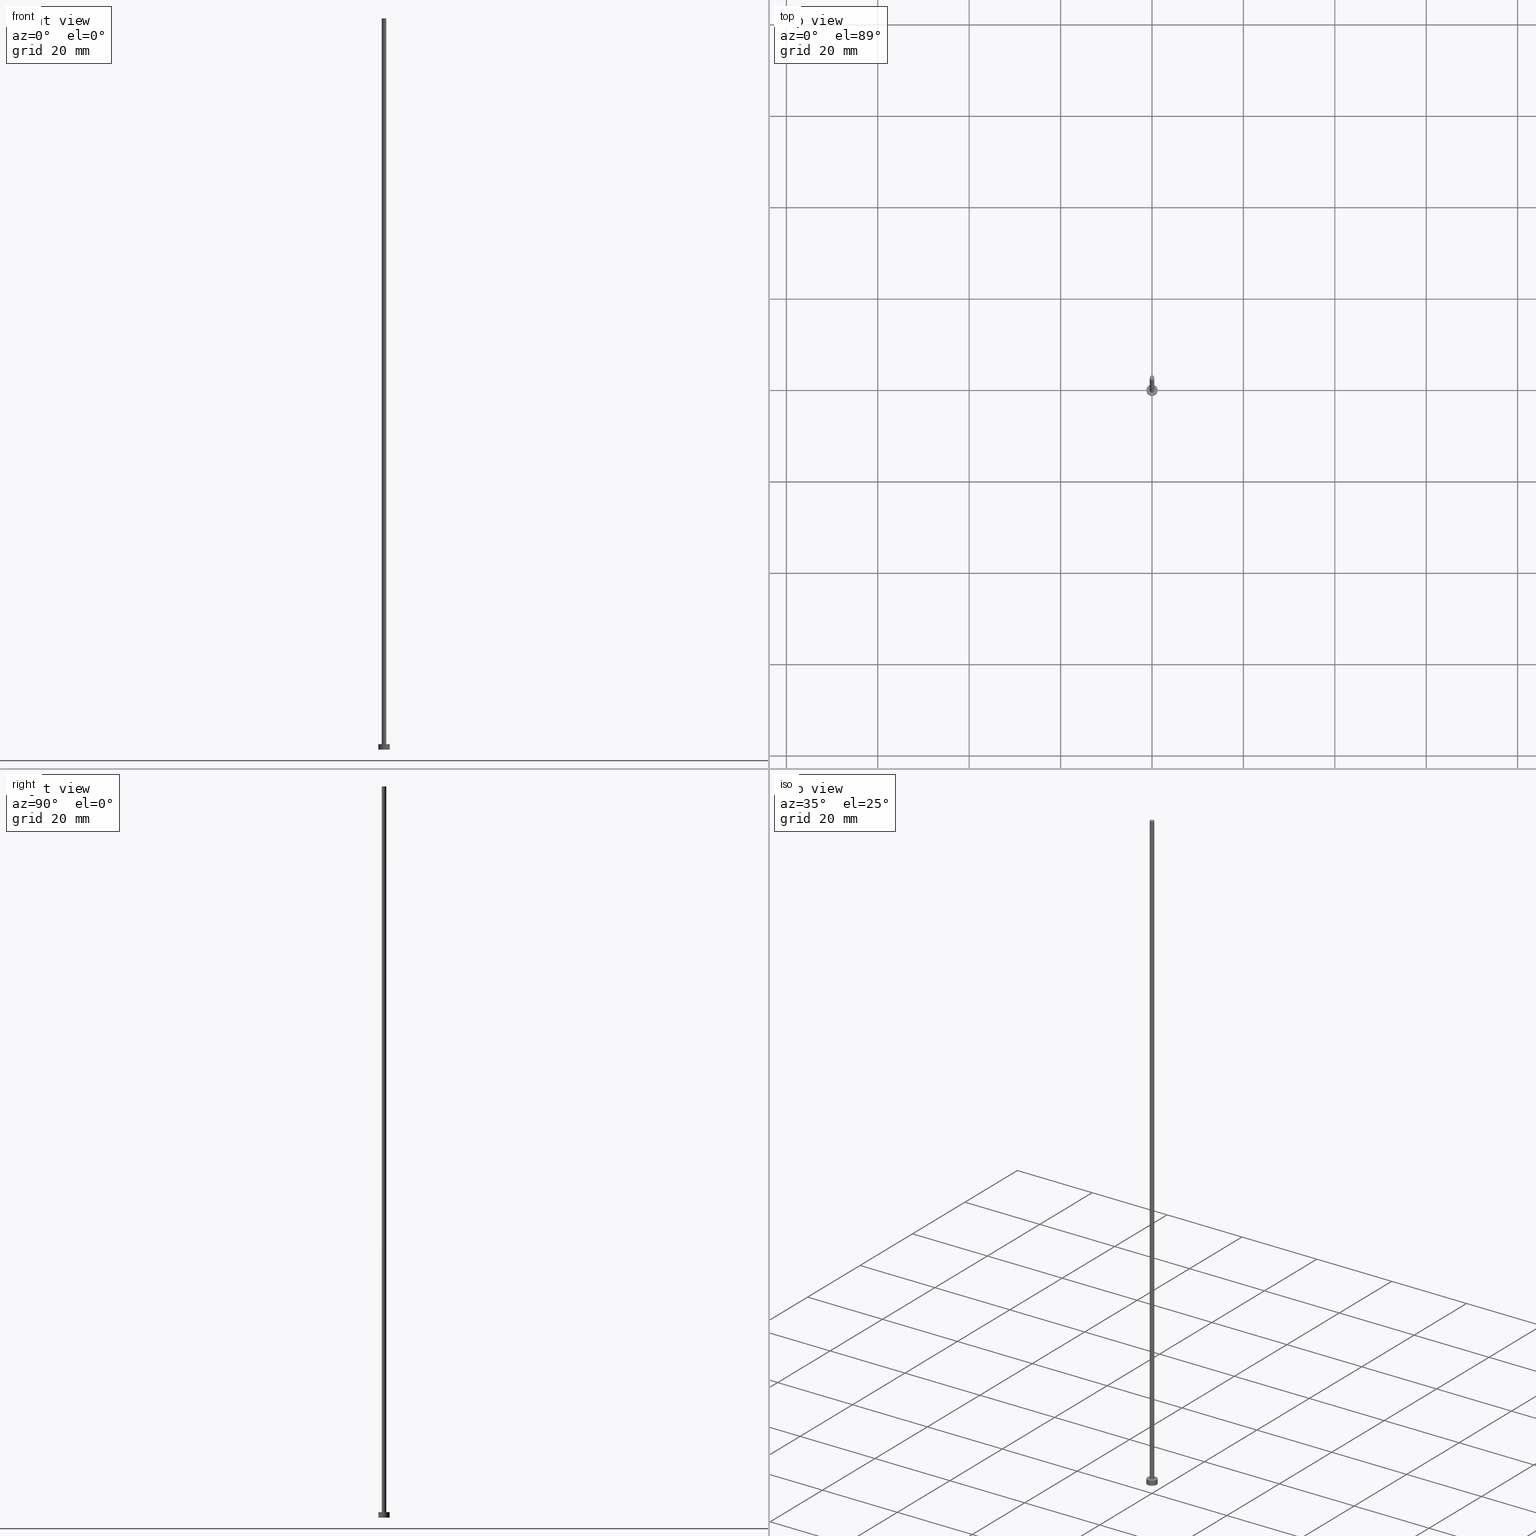
[diagram: canonical four-view strip — front | top / right | iso, engineering-drawing reading convention]
A machine part, canonical four-view strip (front | top / right | iso — engineering-drawing reading convention). The complete STEP part file that produces these views, byte-faithful:
ISO-10303-21;
HEADER;
FILE_DESCRIPTION (( 'STEP AP203' ),
    '1' );
FILE_NAME ('4ecb.STEP',
    '2023-02-12T13:00:20',
    ( '' ),
    ( '' ),
    'SwSTEP 2.0',
    'SolidWorks 2019',
    '' );
FILE_SCHEMA (( 'CONFIG_CONTROL_DESIGN' ));
ENDSEC;

DATA;
#1 = LINE ( 'NONE', #216, #159 ) ;
#2 = AXIS2_PLACEMENT_3D ( 'NONE', #193, #190, #210 ) ;
#3 = ADVANCED_FACE ( 'NONE', ( #170 ), #20, .T. ) ;
#4 = DIRECTION ( 'NONE',  ( 0.000000000000000000, 0.000000000000000000, 1.000000000000000000 ) ) ;
#5 = CIRCLE ( 'NONE', #149, 0.5000000000000000000 ) ;
#6 = FACE_OUTER_BOUND ( 'NONE', #238, .T. ) ;
#7 = ORIENTED_EDGE ( 'NONE', *, *, #71, .F. ) ;
#8 = ADVANCED_FACE ( 'NONE', ( #36 ), #254, .T. ) ;
#9 = APPROVAL_STATUS ( 'not_yet_approved' ) ;
#10 = ADVANCED_FACE ( 'NONE', ( #95, #15 ), #93, .T. ) ;
#11 = COORDINATED_UNIVERSAL_TIME_OFFSET ( 1, 0, .AHEAD. ) ;
#12 = PERSON_AND_ORGANIZATION_ROLE ( 'classification_officer' ) ;
#13 = PERSON_AND_ORGANIZATION ( #184, #208 ) ;
#14 = AXIS2_PLACEMENT_3D ( 'NONE', #165, #132, #213 ) ;
#15 = FACE_OUTER_BOUND ( 'NONE', #54, .T. ) ;
#16 = ADVANCED_FACE ( 'NONE', ( #96 ), #72, .F. ) ;
#17 = CARTESIAN_POINT ( 'NONE',  ( -0.5000000000000000000, 0.000000000000000000, 1.199999999999999956 ) ) ;
#18 = APPROVAL ( #9, 'NEUR�EN�' ) ;
#19 = CIRCLE ( 'NONE', #225, 1.250000000000000000 ) ;
#20 = PLANE ( 'NONE',  #73 ) ;
#21 = CIRCLE ( 'NONE', #125, 1.250000000000000000 ) ;
#22 = PRODUCT_RELATED_PRODUCT_CATEGORY ( 'detail', '', ( #33 ) ) ;
#23 = CARTESIAN_POINT ( 'NONE',  ( 0.000000000000000000, 0.000000000000000000, 160.0000000000000284 ) ) ;
#24 = DIRECTION ( 'NONE',  ( -1.000000000000000000, 0.000000000000000000, 0.000000000000000000 ) ) ;
#25 = CARTESIAN_POINT ( 'NONE',  ( 0.000000000000000000, 0.000000000000000000, 1.199999999999999956 ) ) ;
#26 = VERTEX_POINT ( 'NONE', #17 ) ;
#27 = LOCAL_TIME ( 14, 0, 20.00000000000000000, #11 ) ;
#28 = DIRECTION ( 'NONE',  ( 1.000000000000000000, 0.000000000000000000, 0.000000000000000000 ) ) ;
#29 = ORIENTED_EDGE ( 'NONE', *, *, #133, .F. ) ;
#30 = PERSON_AND_ORGANIZATION ( #184, #208 ) ;
#31 = LOCAL_TIME ( 14, 0, 20.00000000000000000, #85 ) ;
#32 = PERSON_AND_ORGANIZATION ( #184, #208 ) ;
#33 = PRODUCT ( '4ecb', '4ecb', '', ( #204 ) ) ;
#34 = CALENDAR_DATE ( 2023, 12, 2 ) ;
#35 = APPLICATION_PROTOCOL_DEFINITION ( 'international standard', 'config_control_design', 1994, #65 ) ;
#36 = FACE_OUTER_BOUND ( 'NONE', #88, .T. ) ;
#37 = EDGE_LOOP ( 'NONE', ( #61, #178 ) ) ;
#38 = EDGE_CURVE ( 'NONE', #112, #111, #109, .T. ) ;
#39 = AXIS2_PLACEMENT_3D ( 'NONE', #25, #152, #177 ) ;
#40 = DIRECTION ( 'NONE',  ( 1.000000000000000000, 0.000000000000000000, 0.000000000000000000 ) ) ;
#41 = EDGE_CURVE ( 'NONE', #212, #75, #19, .T. ) ;
#42 = DIRECTION ( 'NONE',  ( -0.000000000000000000, -0.000000000000000000, -1.000000000000000000 ) ) ;
#43 = CARTESIAN_POINT ( 'NONE',  ( 0.000000000000000000, 0.000000000000000000, 0.000000000000000000 ) ) ;
#44 = ORIENTED_EDGE ( 'NONE', *, *, #211, .T. ) ;
#45 = CARTESIAN_POINT ( 'NONE',  ( 0.5000000000000000000, 6.123233995736766036E-17, 160.0000000000000284 ) ) ;
#46 = ADVANCED_FACE ( 'NONE', ( #6 ), #100, .T. ) ;
#47 = DIRECTION ( 'NONE',  ( -1.000000000000000000, 0.000000000000000000, 0.000000000000000000 ) ) ;
#48 = CALENDAR_DATE ( 2023, 12, 2 ) ;
#49 = APPROVAL_STATUS ( 'not_yet_approved' ) ;
#50 =( NAMED_UNIT ( * ) SI_UNIT ( $, .STERADIAN. ) SOLID_ANGLE_UNIT ( ) );
#51 = ORIENTED_EDGE ( 'NONE', *, *, #211, .F. ) ;
#52 = DIRECTION ( 'NONE',  ( 0.000000000000000000, 0.000000000000000000, 1.000000000000000000 ) ) ;
#53 = APPLICATION_CONTEXT ( 'configuration controlled 3d designs of mechanical parts and assemblies' ) ;
#54 = EDGE_LOOP ( 'NONE', ( #222, #233 ) ) ;
#55 = CARTESIAN_POINT ( 'NONE',  ( 0.000000000000000000, 0.000000000000000000, 1.199999999999999956 ) ) ;
#56 = AXIS2_PLACEMENT_3D ( 'NONE', #247, #126, #68 ) ;
#57 = FACE_OUTER_BOUND ( 'NONE', #175, .T. ) ;
#58 = EDGE_LOOP ( 'NONE', ( #163, #97, #154, #207 ) ) ;
#59 = DIRECTION ( 'NONE',  ( -0.000000000000000000, -0.000000000000000000, -1.000000000000000000 ) ) ;
#60 = DIRECTION ( 'NONE',  ( 0.000000000000000000, 0.000000000000000000, 1.000000000000000000 ) ) ;
#61 = ORIENTED_EDGE ( 'NONE', *, *, #192, .T. ) ;
#62 = APPROVAL_PERSON_ORGANIZATION ( #13, #172, #92 ) ;
#63 = CALENDAR_DATE ( 2023, 12, 2 ) ;
#64 = PERSON_AND_ORGANIZATION_ROLE ( 'creator' ) ;
#65 = APPLICATION_CONTEXT ( 'configuration controlled 3d designs of mechanical parts and assemblies' ) ;
#66 = CIRCLE ( 'NONE', #191, 0.5000000000000000000 ) ;
#67 = COORDINATED_UNIVERSAL_TIME_OFFSET ( 1, 0, .AHEAD. ) ;
#68 = DIRECTION ( 'NONE',  ( 1.000000000000000000, 0.000000000000000000, 0.000000000000000000 ) ) ;
#69 = AXIS2_PLACEMENT_3D ( 'NONE', #151, #77, #47 ) ;
#70 = COORDINATED_UNIVERSAL_TIME_OFFSET ( 1, 0, .AHEAD. ) ;
#71 = EDGE_CURVE ( 'NONE', #112, #119, #179, .T. ) ;
#72 = PLANE ( 'NONE',  #2 ) ;
#73 = AXIS2_PLACEMENT_3D ( 'NONE', #255, #52, #194 ) ;
#74 = ORIENTED_EDGE ( 'NONE', *, *, #117, .T. ) ;
#75 = VERTEX_POINT ( 'NONE', #76 ) ;
#76 = CARTESIAN_POINT ( 'NONE',  ( 1.250000000000000000, 1.530808498934191571E-16, 1.199999999999999956 ) ) ;
#77 = DIRECTION ( 'NONE',  ( -0.000000000000000000, -0.000000000000000000, -1.000000000000000000 ) ) ;
#78 = CC_DESIGN_APPROVAL ( #122, ( #136 ) ) ;
#79 = CC_DESIGN_PERSON_AND_ORGANIZATION_ASSIGNMENT ( #30, #106, ( #136 ) ) ;
#80 = DIRECTION ( 'NONE',  ( 1.000000000000000000, 0.000000000000000000, 0.000000000000000000 ) ) ;
#81 = EDGE_LOOP ( 'NONE', ( #131, #187 ) ) ;
#82 = CARTESIAN_POINT ( 'NONE',  ( 0.000000000000000000, 0.000000000000000000, 1.199999999999999956 ) ) ;
#83 = CARTESIAN_POINT ( 'NONE',  ( 0.000000000000000000, 0.000000000000000000, 160.0000000000000284 ) ) ;
#84 = LOCAL_TIME ( 14, 0, 20.00000000000000000, #67 ) ;
#85 = COORDINATED_UNIVERSAL_TIME_OFFSET ( 1, 0, .AHEAD. ) ;
#86 = APPROVAL_DATE_TIME ( #203, #172 ) ;
#87 = CALENDAR_DATE ( 2023, 12, 2 ) ;
#88 = EDGE_LOOP ( 'NONE', ( #148, #228, #44, #139 ) ) ;
#89 = APPROVAL_PERSON_ORGANIZATION ( #128, #122, #123 ) ;
#90 = PRODUCT_DEFINITION ( 'NEZN�M�', '', #136, #253 ) ;
#91 = SHAPE_DEFINITION_REPRESENTATION ( #105, #137 ) ;
#92 = APPROVAL_ROLE ( '' ) ;
#93 = PLANE ( 'NONE',  #14 ) ;
#94 = ORIENTED_EDGE ( 'NONE', *, *, #235, .F. ) ;
#95 = FACE_BOUND ( 'NONE', #250, .T. ) ;
#96 = FACE_OUTER_BOUND ( 'NONE', #81, .T. ) ;
#97 = ORIENTED_EDGE ( 'NONE', *, *, #41, .F. ) ;
#98 = CARTESIAN_POINT ( 'NONE',  ( 1.250000000000000000, 1.530808498934191571E-16, 1.199999999999999956 ) ) ;
#99 = CIRCLE ( 'NONE', #156, 1.250000000000000000 ) ;
#100 = CYLINDRICAL_SURFACE ( 'NONE', #69, 1.250000000000000000 ) ;
#101 = VERTEX_POINT ( 'NONE', #240 ) ;
#102 = DIRECTION ( 'NONE',  ( 1.000000000000000000, 0.000000000000000000, 0.000000000000000000 ) ) ;
#103 = VERTEX_POINT ( 'NONE', #153 ) ;
#104 = CARTESIAN_POINT ( 'NONE',  ( 0.000000000000000000, 0.000000000000000000, 0.000000000000000000 ) ) ;
#105 = PRODUCT_DEFINITION_SHAPE ( 'NONE', 'NONE',  #90 ) ;
#106 = PERSON_AND_ORGANIZATION_ROLE ( 'design_supplier' ) ;
#107 = CALENDAR_DATE ( 2023, 12, 2 ) ;
#108 = VECTOR ( 'NONE', #237, 1000.000000000000000 ) ;
#109 = LINE ( 'NONE', #229, #205 ) ;
#110 = LOCAL_TIME ( 14, 0, 20.00000000000000000, #243 ) ;
#111 = VERTEX_POINT ( 'NONE', #198 ) ;
#112 = VERTEX_POINT ( 'NONE', #45 ) ;
#113 = ORIENTED_EDGE ( 'NONE', *, *, #155, .F. ) ;
#114 = DIRECTION ( 'NONE',  ( 0.000000000000000000, 0.000000000000000000, 1.000000000000000000 ) ) ;
#115 = DIRECTION ( 'NONE',  ( 0.000000000000000000, 0.000000000000000000, 1.000000000000000000 ) ) ;
#116 = AXIS2_PLACEMENT_3D ( 'NONE', #234, #4, #135 ) ;
#117 = EDGE_CURVE ( 'NONE', #75, #101, #197, .T. ) ;
#118 = CARTESIAN_POINT ( 'NONE',  ( -1.250000000000000000, 0.000000000000000000, 1.199999999999999956 ) ) ;
#119 = VERTEX_POINT ( 'NONE', #174 ) ;
#120 = CC_DESIGN_APPROVAL ( #18, ( #166 ) ) ;
#121 = LINE ( 'NONE', #118, #108 ) ;
#122 = APPROVAL ( #183, 'NEUR�EN�' ) ;
#123 = APPROVAL_ROLE ( '' ) ;
#124 = APPLICATION_PROTOCOL_DEFINITION ( 'international standard', 'config_control_design', 1994, #53 ) ;
#125 = AXIS2_PLACEMENT_3D ( 'NONE', #43, #239, #40 ) ;
#126 = DIRECTION ( 'NONE',  ( 0.000000000000000000, 0.000000000000000000, 1.000000000000000000 ) ) ;
#127 = CC_DESIGN_PERSON_AND_ORGANIZATION_ASSIGNMENT ( #181, #12, ( #166 ) ) ;
#128 = PERSON_AND_ORGANIZATION ( #184, #208 ) ;
#129 = ORIENTED_EDGE ( 'NONE', *, *, #173, .T. ) ;
#130 = CC_DESIGN_DATE_AND_TIME_ASSIGNMENT ( #186, #162, ( #166 ) ) ;
#131 = ORIENTED_EDGE ( 'NONE', *, *, #246, .F. ) ;
#132 = DIRECTION ( 'NONE',  ( 0.000000000000000000, 0.000000000000000000, 1.000000000000000000 ) ) ;
#133 = EDGE_CURVE ( 'NONE', #212, #103, #121, .T. ) ;
#134 = EDGE_CURVE ( 'NONE', #75, #212, #99, .T. ) ;
#135 = DIRECTION ( 'NONE',  ( 1.000000000000000000, 0.000000000000000000, 0.000000000000000000 ) ) ;
#136 = PRODUCT_DEFINITION_FORMATION_WITH_SPECIFIED_SOURCE ( 'LIBOVOLN�', '', #33, .NOT_KNOWN. ) ;
#137 = ADVANCED_BREP_SHAPE_REPRESENTATION ( '4ecb', ( #160, #56 ), #245 ) ;
#138 = CARTESIAN_POINT ( 'NONE',  ( -1.250000000000000000, 0.000000000000000000, 1.199999999999999956 ) ) ;
#139 = ORIENTED_EDGE ( 'NONE', *, *, #155, .T. ) ;
#140 = DIRECTION ( 'NONE',  ( 0.000000000000000000, 0.000000000000000000, 1.000000000000000000 ) ) ;
#141 = CC_DESIGN_PERSON_AND_ORGANIZATION_ASSIGNMENT ( #146, #64, ( #136 ) ) ;
#142 = PERSON_AND_ORGANIZATION_ROLE ( 'design_owner' ) ;
#143 = CC_DESIGN_PERSON_AND_ORGANIZATION_ASSIGNMENT ( #32, #224, ( #90 ) ) ;
#144 = AXIS2_PLACEMENT_3D ( 'NONE', #23, #42, #24 ) ;
#145 = DATE_AND_TIME ( #63, #84 ) ;
#146 = PERSON_AND_ORGANIZATION ( #184, #208 ) ;
#147 = DATE_AND_TIME ( #107, #110 ) ;
#148 = ORIENTED_EDGE ( 'NONE', *, *, #38, .F. ) ;
#149 = AXIS2_PLACEMENT_3D ( 'NONE', #83, #200, #102 ) ;
#150 = DIRECTION ( 'NONE',  ( -0.000000000000000000, -0.000000000000000000, -1.000000000000000000 ) ) ;
#151 = CARTESIAN_POINT ( 'NONE',  ( 0.000000000000000000, 0.000000000000000000, 1.199999999999999956 ) ) ;
#152 = DIRECTION ( 'NONE',  ( -0.000000000000000000, -0.000000000000000000, -1.000000000000000000 ) ) ;
#153 = CARTESIAN_POINT ( 'NONE',  ( -1.250000000000000000, 0.000000000000000000, 0.000000000000000000 ) ) ;
#154 = ORIENTED_EDGE ( 'NONE', *, *, #133, .T. ) ;
#155 = EDGE_CURVE ( 'NONE', #26, #111, #242, .T. ) ;
#156 = AXIS2_PLACEMENT_3D ( 'NONE', #55, #115, #217 ) ;
#157 = CARTESIAN_POINT ( 'NONE',  ( 0.000000000000000000, 0.000000000000000000, 160.0000000000000284 ) ) ;
#158 =( LENGTH_UNIT ( ) NAMED_UNIT ( * ) SI_UNIT ( .MILLI., .METRE. ) );
#159 = VECTOR ( 'NONE', #59, 1000.000000000000000 ) ;
#160 = MANIFOLD_SOLID_BREP ( 'P�idat vysunut�m3', #169 ) ;
#161 = APPROVAL_ROLE ( '' ) ;
#162 = DATE_TIME_ROLE ( 'classification_date' ) ;
#163 = ORIENTED_EDGE ( 'NONE', *, *, #117, .F. ) ;
#164 = VECTOR ( 'NONE', #171, 1000.000000000000000 ) ;
#165 = CARTESIAN_POINT ( 'NONE',  ( 0.000000000000000000, 0.000000000000000000, 1.199999999999999956 ) ) ;
#166 = SECURITY_CLASSIFICATION ( '', '', #185 ) ;
#167 = CC_DESIGN_DATE_AND_TIME_ASSIGNMENT ( #147, #227, ( #90 ) ) ;
#168 = DIRECTION ( 'NONE',  ( -0.000000000000000000, -0.000000000000000000, -1.000000000000000000 ) ) ;
#169 = CLOSED_SHELL ( 'NONE', ( #189, #46, #209, #10, #16, #8, #3 ) ) ;
#170 = FACE_OUTER_BOUND ( 'NONE', #37, .T. ) ;
#171 = DIRECTION ( 'NONE',  ( -0.000000000000000000, -0.000000000000000000, -1.000000000000000000 ) ) ;
#172 = APPROVAL ( #49, 'NEUR�EN�' ) ;
#173 = EDGE_CURVE ( 'NONE', #101, #103, #195, .T. ) ;
#174 = CARTESIAN_POINT ( 'NONE',  ( -0.5000000000000000000, 0.000000000000000000, 160.0000000000000284 ) ) ;
#175 = EDGE_LOOP ( 'NONE', ( #7, #230, #220, #51 ) ) ;
#176 = CARTESIAN_POINT ( 'NONE',  ( 0.000000000000000000, 0.000000000000000000, 1.199999999999999956 ) ) ;
#177 = DIRECTION ( 'NONE',  ( -1.000000000000000000, 0.000000000000000000, 0.000000000000000000 ) ) ;
#178 = ORIENTED_EDGE ( 'NONE', *, *, #71, .T. ) ;
#179 = CIRCLE ( 'NONE', #248, 0.5000000000000000000 ) ;
#180 = FACE_OUTER_BOUND ( 'NONE', #58, .T. ) ;
#181 = PERSON_AND_ORGANIZATION ( #184, #208 ) ;
#182 = LOCAL_TIME ( 14, 0, 20.00000000000000000, #70 ) ;
#183 = APPROVAL_STATUS ( 'not_yet_approved' ) ;
#184 = PERSON ( 'NEUR�EN�', 'NEUR�EN�', 'NEUR�EN�', ('NEUR�EN�'), ('NEUR�EN�'), ('NEUR�EN�') ) ;
#185 = SECURITY_CLASSIFICATION_LEVEL ( 'unclassified' ) ;
#186 = DATE_AND_TIME ( #87, #27 ) ;
#187 = ORIENTED_EDGE ( 'NONE', *, *, #173, .F. ) ;
#188 = CC_DESIGN_PERSON_AND_ORGANIZATION_ASSIGNMENT ( #249, #142, ( #33 ) ) ;
#189 = ADVANCED_FACE ( 'NONE', ( #57 ), #199, .T. ) ;
#190 = DIRECTION ( 'NONE',  ( 0.000000000000000000, 0.000000000000000000, 1.000000000000000000 ) ) ;
#191 = AXIS2_PLACEMENT_3D ( 'NONE', #176, #140, #219 ) ;
#192 = EDGE_CURVE ( 'NONE', #119, #112, #5, .T. ) ;
#193 = CARTESIAN_POINT ( 'NONE',  ( 0.000000000000000000, 0.000000000000000000, 0.000000000000000000 ) ) ;
#194 = DIRECTION ( 'NONE',  ( 1.000000000000000000, 0.000000000000000000, -0.000000000000000000 ) ) ;
#195 = CIRCLE ( 'NONE', #231, 1.250000000000000000 ) ;
#196 = APPROVAL_PERSON_ORGANIZATION ( #244, #18, #161 ) ;
#197 = LINE ( 'NONE', #98, #164 ) ;
#198 = CARTESIAN_POINT ( 'NONE',  ( 0.5000000000000000000, 6.123233995736766036E-17, 1.199999999999999956 ) ) ;
#199 = CYLINDRICAL_SURFACE ( 'NONE', #144, 0.5000000000000000000 ) ;
#200 = DIRECTION ( 'NONE',  ( 0.000000000000000000, 0.000000000000000000, 1.000000000000000000 ) ) ;
#201 = DIRECTION ( 'NONE',  ( 1.000000000000000000, 0.000000000000000000, 0.000000000000000000 ) ) ;
#202 = DATE_AND_TIME ( #34, #31 ) ;
#203 = DATE_AND_TIME ( #48, #182 ) ;
#204 = MECHANICAL_CONTEXT ( 'NONE', #53, 'mechanical' ) ;
#205 = VECTOR ( 'NONE', #168, 1000.000000000000000 ) ;
#206 = APPROVAL_DATE_TIME ( #145, #18 ) ;
#207 = ORIENTED_EDGE ( 'NONE', *, *, #246, .T. ) ;
#208 = ORGANIZATION ( 'NEUR�EN�', 'NEUR�EN�', '' ) ;
#209 = ADVANCED_FACE ( 'NONE', ( #180 ), #221, .T. ) ;
#210 = DIRECTION ( 'NONE',  ( 1.000000000000000000, 0.000000000000000000, -0.000000000000000000 ) ) ;
#211 = EDGE_CURVE ( 'NONE', #119, #26, #1, .T. ) ;
#212 = VERTEX_POINT ( 'NONE', #138 ) ;
#213 = DIRECTION ( 'NONE',  ( 1.000000000000000000, 0.000000000000000000, -0.000000000000000000 ) ) ;
#214 = UNCERTAINTY_MEASURE_WITH_UNIT (LENGTH_MEASURE( 1.000000000000000082E-05 ), #158, 'distance_accuracy_value', 'NONE');
#215 = DIRECTION ( 'NONE',  ( -1.000000000000000000, 0.000000000000000000, 0.000000000000000000 ) ) ;
#216 = CARTESIAN_POINT ( 'NONE',  ( -0.5000000000000000000, 0.000000000000000000, 160.0000000000000284 ) ) ;
#217 = DIRECTION ( 'NONE',  ( 1.000000000000000000, 0.000000000000000000, 0.000000000000000000 ) ) ;
#218 = ORIENTED_EDGE ( 'NONE', *, *, #134, .F. ) ;
#219 = DIRECTION ( 'NONE',  ( 1.000000000000000000, 0.000000000000000000, 0.000000000000000000 ) ) ;
#220 = ORIENTED_EDGE ( 'NONE', *, *, #235, .T. ) ;
#221 = CYLINDRICAL_SURFACE ( 'NONE', #39, 1.250000000000000000 ) ;
#222 = ORIENTED_EDGE ( 'NONE', *, *, #41, .T. ) ;
#223 = CC_DESIGN_APPROVAL ( #172, ( #90 ) ) ;
#224 = PERSON_AND_ORGANIZATION_ROLE ( 'creator' ) ;
#225 = AXIS2_PLACEMENT_3D ( 'NONE', #82, #114, #28 ) ;
#226 =( NAMED_UNIT ( * ) PLANE_ANGLE_UNIT ( ) SI_UNIT ( $, .RADIAN. ) );
#227 = DATE_TIME_ROLE ( 'creation_date' ) ;
#228 = ORIENTED_EDGE ( 'NONE', *, *, #192, .F. ) ;
#229 = CARTESIAN_POINT ( 'NONE',  ( 0.5000000000000000000, 6.123233995736766036E-17, 160.0000000000000284 ) ) ;
#230 = ORIENTED_EDGE ( 'NONE', *, *, #38, .T. ) ;
#231 = AXIS2_PLACEMENT_3D ( 'NONE', #104, #236, #201 ) ;
#232 = CC_DESIGN_SECURITY_CLASSIFICATION ( #166, ( #136 ) ) ;
#233 = ORIENTED_EDGE ( 'NONE', *, *, #134, .T. ) ;
#234 = CARTESIAN_POINT ( 'NONE',  ( 0.000000000000000000, 0.000000000000000000, 1.199999999999999956 ) ) ;
#235 = EDGE_CURVE ( 'NONE', #111, #26, #66, .T. ) ;
#236 = DIRECTION ( 'NONE',  ( 0.000000000000000000, 0.000000000000000000, 1.000000000000000000 ) ) ;
#237 = DIRECTION ( 'NONE',  ( -0.000000000000000000, -0.000000000000000000, -1.000000000000000000 ) ) ;
#238 = EDGE_LOOP ( 'NONE', ( #218, #74, #129, #29 ) ) ;
#239 = DIRECTION ( 'NONE',  ( 0.000000000000000000, 0.000000000000000000, 1.000000000000000000 ) ) ;
#240 = CARTESIAN_POINT ( 'NONE',  ( 1.250000000000000000, 1.530808498934191571E-16, 0.000000000000000000 ) ) ;
#241 = APPROVAL_DATE_TIME ( #202, #122 ) ;
#242 = CIRCLE ( 'NONE', #116, 0.5000000000000000000 ) ;
#243 = COORDINATED_UNIVERSAL_TIME_OFFSET ( 1, 0, .AHEAD. ) ;
#244 = PERSON_AND_ORGANIZATION ( #184, #208 ) ;
#245 =( GEOMETRIC_REPRESENTATION_CONTEXT ( 3 ) GLOBAL_UNCERTAINTY_ASSIGNED_CONTEXT ( ( #214 ) ) GLOBAL_UNIT_ASSIGNED_CONTEXT ( ( #158, #226, #50 ) ) REPRESENTATION_CONTEXT ( 'NONE', 'WORKASPACE' ) );
#246 = EDGE_CURVE ( 'NONE', #103, #101, #21, .T. ) ;
#247 = CARTESIAN_POINT ( 'NONE',  ( 0.000000000000000000, 0.000000000000000000, 0.000000000000000000 ) ) ;
#248 = AXIS2_PLACEMENT_3D ( 'NONE', #157, #60, #80 ) ;
#249 = PERSON_AND_ORGANIZATION ( #184, #208 ) ;
#250 = EDGE_LOOP ( 'NONE', ( #113, #94 ) ) ;
#251 = CARTESIAN_POINT ( 'NONE',  ( 0.000000000000000000, 0.000000000000000000, 160.0000000000000284 ) ) ;
#252 = AXIS2_PLACEMENT_3D ( 'NONE', #251, #150, #215 ) ;
#253 = DESIGN_CONTEXT ( 'detailed design', #65, 'design' ) ;
#254 = CYLINDRICAL_SURFACE ( 'NONE', #252, 0.5000000000000000000 ) ;
#255 = CARTESIAN_POINT ( 'NONE',  ( 0.000000000000000000, 0.000000000000000000, 160.0000000000000284 ) ) ;
ENDSEC;
END-ISO-10303-21;
